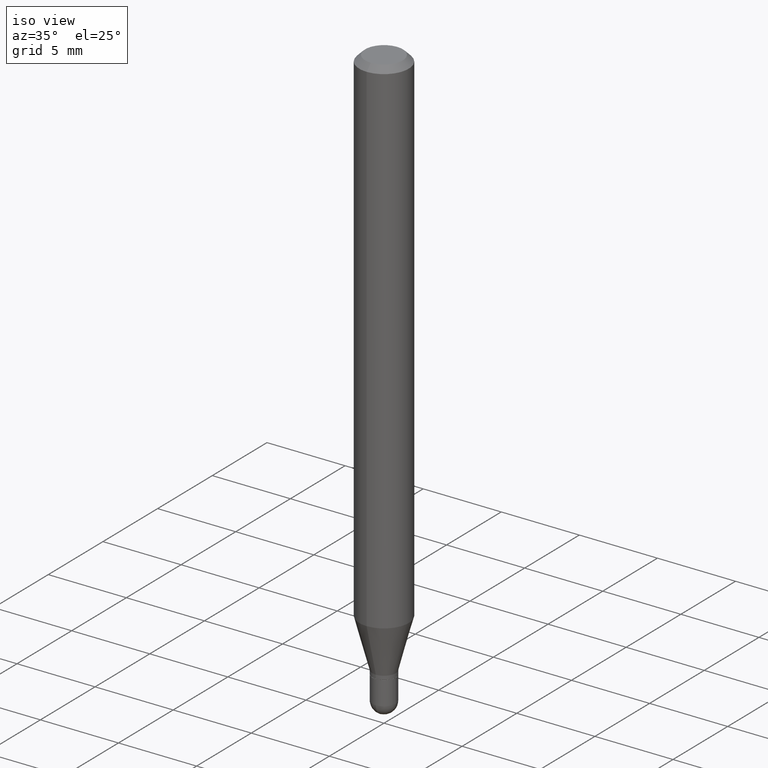
[diagram: clean part render]
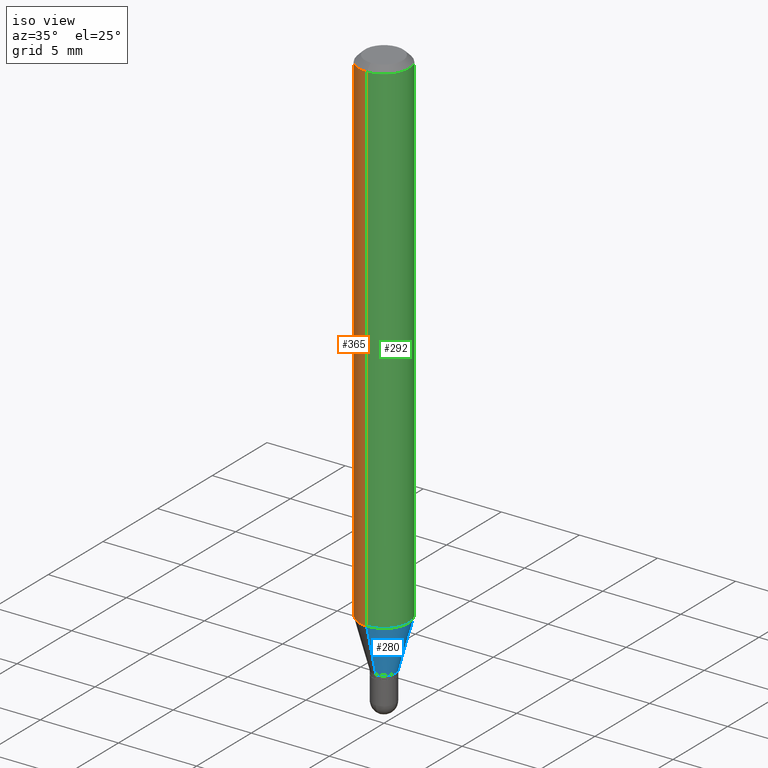
[diagram: same view with three faces highlighted in distinct colors, each labeled with its STEP entity id]
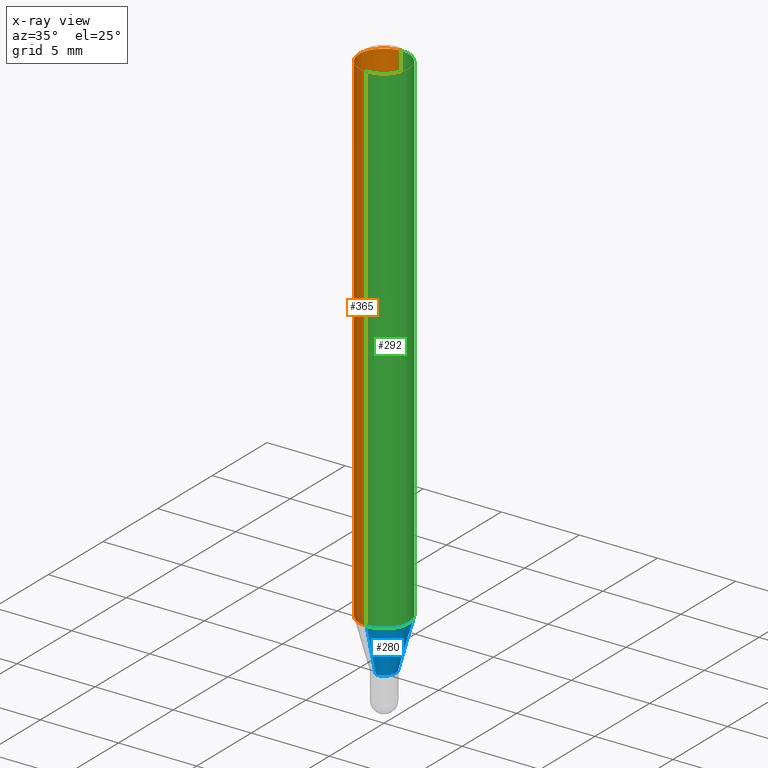
[diagram: x-ray of the same camera — body ghosted, the three highlighted faces saturated]
A machine part, iso view with three faces highlighted in distinct colors.
The next image is the same camera in x-ray (body ghosted, the three faces saturated) — at least one of them is partly hidden behind the body in this view.
Their STEP definitions:

[orange] entity #365 — the highlighted cylindrical surface (edge-blend (fillet) strip) has radius 1.5875 mm, axis along (-0, 0, 1).
#4 = CARTESIAN_POINT ( 'NONE',  ( 4.440892098500935790E-16, 0.06249999999999551054, -1.277842323350228959 ) ) ;
#11 = CARTESIAN_POINT ( 'NONE',  ( -4.364351673553916201E-16, -0.06250000000000000000, 2.182174235883125981E-16 ) ) ;
#15 = CARTESIAN_POINT ( 'NONE',  ( 3.124925826572324865E-29, -4.461559352857447454E-15, -1.277842323350228737 ) ) ;
#27 = FACE_OUTER_BOUND ( 'NONE', #305, .T. ) ;
#28 = EDGE_CURVE ( 'NONE', #345, #294, #340, .T. ) ;
#33 = DIRECTION ( 'NONE',  ( -2.445470594822246081E-29, 3.491478777413001570E-15, 1.000000000000000000 ) ) ;
#45 = LINE ( 'NONE', #208, #262 ) ;
#48 = DIRECTION ( 'NONE',  ( -2.445470594822246362E-29, 3.491478777413001965E-15, 1.000000000000000000 ) ) ;
#85 = DIRECTION ( 'NONE',  ( -6.982962677686265922E-15, -1.000000000000000000, 3.491478777413001570E-15 ) ) ;
#96 = LINE ( 'NONE', #11, #385 ) ;
#126 = CYLINDRICAL_SURFACE ( 'NONE', #432, 0.06250000000000000000 ) ;
#134 = ORIENTED_EDGE ( 'NONE', *, *, #335, .F. ) ;
#143 = DIRECTION ( 'NONE',  ( -6.982962677686265922E-15, -1.000000000000000000, 3.483106191921935554E-15 ) ) ;
#187 = DIRECTION ( 'NONE',  ( -2.445470594822246081E-29, 3.491478777413001570E-15, 1.000000000000000000 ) ) ;
#191 = DIRECTION ( 'NONE',  ( -6.982962677686265922E-15, -1.000000000000000000, 4.370956789862821150E-15 ) ) ;
#208 = CARTESIAN_POINT ( 'NONE',  ( 4.440892098500625669E-16, 0.06250000000000000000, -2.182174235883125981E-16 ) ) ;
#210 = CARTESIAN_POINT ( 'NONE',  ( -4.364351673553912750E-16, -0.06250000000000005551, -0.01499999999999979128 ) ) ;
#259 = CARTESIAN_POINT ( 'NONE',  ( 4.440892098500940720E-16, 0.06249999999999995143, -0.01500000000000022669 ) ) ;
#262 = VECTOR ( 'NONE', #48, 39.37007874015748143 ) ;
#275 = VERTEX_POINT ( 'NONE', #210 ) ;
#278 = EDGE_CURVE ( 'NONE', #485, #275, #281, .T. ) ;
#281 = CIRCLE ( 'NONE', #479, 0.06250000000000000000 ) ;
#293 = CARTESIAN_POINT ( 'NONE',  ( 3.668205892233371399E-31, -5.237218166119505609E-17, -0.01500000000000000812 ) ) ;
#294 = VERTEX_POINT ( 'NONE', #437 ) ;
#305 = EDGE_LOOP ( 'NONE', ( #134, #314, #332, #350 ) ) ;
#314 = ORIENTED_EDGE ( 'NONE', *, *, #28, .T. ) ;
#327 = DIRECTION ( 'NONE',  ( -2.445470594822246081E-29, 3.491478777413001570E-15, 1.000000000000000000 ) ) ;
#332 = ORIENTED_EDGE ( 'NONE', *, *, #482, .T. ) ;
#335 = EDGE_CURVE ( 'NONE', #345, #485, #45, .T. ) ;
#340 = CIRCLE ( 'NONE', #469, 0.06250000000000000000 ) ;
#345 = VERTEX_POINT ( 'NONE', #4 ) ;
#350 = ORIENTED_EDGE ( 'NONE', *, *, #278, .F. ) ;
#365 = ADVANCED_FACE ( 'NONE', ( #27 ), #126, .T. ) ;
#385 = VECTOR ( 'NONE', #404, 39.37007874015748143 ) ;
#404 = DIRECTION ( 'NONE',  ( -2.445470594822246362E-29, 3.491478777413001965E-15, 1.000000000000000000 ) ) ;
#432 = AXIS2_PLACEMENT_3D ( 'NONE', #505, #33, #85 ) ;
#437 = CARTESIAN_POINT ( 'NONE',  ( -4.364351673553605587E-16, -0.06250000000000449640, -1.277842323350228515 ) ) ;
#469 = AXIS2_PLACEMENT_3D ( 'NONE', #15, #187, #191 ) ;
#479 = AXIS2_PLACEMENT_3D ( 'NONE', #293, #327, #143 ) ;
#482 = EDGE_CURVE ( 'NONE', #294, #275, #96, .T. ) ;
#485 = VERTEX_POINT ( 'NONE', #259 ) ;
#505 = CARTESIAN_POINT ( 'NONE',  ( 0.000000000000000000, 0.000000000000000000, 0.000000000000000000 ) ) ;

[blue] entity #280 — the highlighted conical surface has half-angle 15 deg.
#4 = CARTESIAN_POINT ( 'NONE',  ( 4.440892098500935790E-16, 0.06249999999999551054, -1.277842323350228959 ) ) ;
#5 = EDGE_LOOP ( 'NONE', ( #18, #276, #55, #388 ) ) ;
#14 = CARTESIAN_POINT ( 'NONE',  ( -2.059973989917119804E-16, -0.02950000000000509159, -1.401000000000000245 ) ) ;
#18 = ORIENTED_EDGE ( 'NONE', *, *, #249, .T. ) ;
#36 = EDGE_CURVE ( 'NONE', #294, #345, #90, .T. ) ;
#49 = DIRECTION ( 'NONE',  ( -2.445470594822246081E-29, 3.491478777413001570E-15, 1.000000000000000000 ) ) ;
#55 = ORIENTED_EDGE ( 'NONE', *, *, #36, .F. ) ;
#58 = CARTESIAN_POINT ( 'NONE',  ( 3.426104303345967375E-29, -4.891561767155615897E-15, -1.401000000000000245 ) ) ;
#73 = CONICAL_SURFACE ( 'NONE', #411, 0.02950000000000019967, 0.2617993877991511287 ) ;
#86 = CARTESIAN_POINT ( 'NONE',  ( 3.124925826572324865E-29, -4.461559352857447454E-15, -1.277842323350228737 ) ) ;
#87 = VECTOR ( 'NONE', #179, 39.37007874015748143 ) ;
#90 = CIRCLE ( 'NONE', #489, 0.06250000000000000000 ) ;
#111 = DIRECTION ( 'NONE',  ( -2.445470594822246081E-29, 3.491478777413001570E-15, 1.000000000000000000 ) ) ;
#130 = DIRECTION ( 'NONE',  ( -2.445470594822246081E-29, 3.491478777413001570E-15, 1.000000000000000000 ) ) ;
#138 = EDGE_CURVE ( 'NONE', #475, #294, #368, .T. ) ;
#156 = EDGE_CURVE ( 'NONE', #400, #345, #219, .T. ) ;
#173 = DIRECTION ( 'NONE',  ( -6.982962677686265922E-15, -1.000000000000000000, 0.000000000000000000 ) ) ;
#179 = DIRECTION ( 'NONE',  ( -1.807323732225336056E-15, -0.2588190451025190186, 0.9659258262890687563 ) ) ;
#182 = CARTESIAN_POINT ( 'NONE',  ( 2.096101070492652151E-16, 0.02949999999999530775, -1.401000000000000245 ) ) ;
#193 = DIRECTION ( 'NONE',  ( -6.982962677686265922E-15, -1.000000000000000000, 4.370956789862821150E-15 ) ) ;
#211 = DIRECTION ( 'NONE',  ( -6.982962677686265922E-15, -1.000000000000000000, 0.000000000000000000 ) ) ;
#219 = LINE ( 'NONE', #182, #398 ) ;
#249 = EDGE_CURVE ( 'NONE', #475, #400, #502, .T. ) ;
#267 = DIRECTION ( 'NONE',  ( 1.839019923739606232E-15, 0.2588190451025257910, 0.9659258262890669799 ) ) ;
#276 = ORIENTED_EDGE ( 'NONE', *, *, #156, .T. ) ;
#280 = ADVANCED_FACE ( 'NONE', ( #289 ), #73, .T. ) ;
#289 = FACE_OUTER_BOUND ( 'NONE', #5, .T. ) ;
#294 = VERTEX_POINT ( 'NONE', #437 ) ;
#331 = CARTESIAN_POINT ( 'NONE',  ( 3.268496584496795573E-16, 0.02949999999999530775, -1.401000000000000245 ) ) ;
#345 = VERTEX_POINT ( 'NONE', #4 ) ;
#368 = LINE ( 'NONE', #14, #87 ) ;
#377 = AXIS2_PLACEMENT_3D ( 'NONE', #58, #49, #173 ) ;
#388 = ORIENTED_EDGE ( 'NONE', *, *, #138, .F. ) ;
#398 = VECTOR ( 'NONE', #267, 39.37007874015748143 ) ;
#400 = VERTEX_POINT ( 'NONE', #331 ) ;
#411 = AXIS2_PLACEMENT_3D ( 'NONE', #444, #130, #211 ) ;
#437 = CARTESIAN_POINT ( 'NONE',  ( -4.364351673553605587E-16, -0.06250000000000449640, -1.277842323350228515 ) ) ;
#444 = CARTESIAN_POINT ( 'NONE',  ( 3.426104303345967375E-29, -4.891561767155615897E-15, -1.401000000000000245 ) ) ;
#457 = CARTESIAN_POINT ( 'NONE',  ( -2.059973989917119804E-16, -0.02950000000000509159, -1.401000000000000245 ) ) ;
#475 = VERTEX_POINT ( 'NONE', #457 ) ;
#489 = AXIS2_PLACEMENT_3D ( 'NONE', #86, #111, #193 ) ;
#502 = CIRCLE ( 'NONE', #377, 0.02950000000000019967 ) ;

[green] entity #292 — the highlighted cylindrical surface (edge-blend (fillet) strip) has radius 1.5875 mm, axis along (-0, 0, 1).
#4 = CARTESIAN_POINT ( 'NONE',  ( 4.440892098500935790E-16, 0.06249999999999551054, -1.277842323350228959 ) ) ;
#11 = CARTESIAN_POINT ( 'NONE',  ( -4.364351673553916201E-16, -0.06250000000000000000, 2.182174235883125981E-16 ) ) ;
#35 = CARTESIAN_POINT ( 'NONE',  ( 3.668205892233371399E-31, -5.237218166119505609E-17, -0.01500000000000000812 ) ) ;
#36 = EDGE_CURVE ( 'NONE', #294, #345, #90, .T. ) ;
#45 = LINE ( 'NONE', #208, #262 ) ;
#48 = DIRECTION ( 'NONE',  ( -2.445470594822246362E-29, 3.491478777413001965E-15, 1.000000000000000000 ) ) ;
#56 = DIRECTION ( 'NONE',  ( -6.982962677686265922E-15, -1.000000000000000000, 3.491478777413001570E-15 ) ) ;
#86 = CARTESIAN_POINT ( 'NONE',  ( 3.124925826572324865E-29, -4.461559352857447454E-15, -1.277842323350228737 ) ) ;
#90 = CIRCLE ( 'NONE', #489, 0.06250000000000000000 ) ;
#96 = LINE ( 'NONE', #11, #385 ) ;
#111 = DIRECTION ( 'NONE',  ( -2.445470594822246081E-29, 3.491478777413001570E-15, 1.000000000000000000 ) ) ;
#133 = CARTESIAN_POINT ( 'NONE',  ( 0.000000000000000000, 0.000000000000000000, 0.000000000000000000 ) ) ;
#168 = FACE_OUTER_BOUND ( 'NONE', #389, .T. ) ;
#172 = DIRECTION ( 'NONE',  ( -2.445470594822246081E-29, 3.491478777413001570E-15, 1.000000000000000000 ) ) ;
#193 = DIRECTION ( 'NONE',  ( -6.982962677686265922E-15, -1.000000000000000000, 4.370956789862821150E-15 ) ) ;
#208 = CARTESIAN_POINT ( 'NONE',  ( 4.440892098500625669E-16, 0.06250000000000000000, -2.182174235883125981E-16 ) ) ;
#210 = CARTESIAN_POINT ( 'NONE',  ( -4.364351673553912750E-16, -0.06250000000000005551, -0.01499999999999979128 ) ) ;
#235 = AXIS2_PLACEMENT_3D ( 'NONE', #35, #172, #428 ) ;
#243 = DIRECTION ( 'NONE',  ( -2.445470594822246081E-29, 3.491478777413001570E-15, 1.000000000000000000 ) ) ;
#259 = CARTESIAN_POINT ( 'NONE',  ( 4.440892098500940720E-16, 0.06249999999999995143, -0.01500000000000022669 ) ) ;
#262 = VECTOR ( 'NONE', #48, 39.37007874015748143 ) ;
#275 = VERTEX_POINT ( 'NONE', #210 ) ;
#292 = ADVANCED_FACE ( 'NONE', ( #168 ), #474, .T. ) ;
#294 = VERTEX_POINT ( 'NONE', #437 ) ;
#309 = ORIENTED_EDGE ( 'NONE', *, *, #335, .T. ) ;
#326 = ORIENTED_EDGE ( 'NONE', *, *, #36, .T. ) ;
#335 = EDGE_CURVE ( 'NONE', #345, #485, #45, .T. ) ;
#345 = VERTEX_POINT ( 'NONE', #4 ) ;
#385 = VECTOR ( 'NONE', #404, 39.37007874015748143 ) ;
#389 = EDGE_LOOP ( 'NONE', ( #326, #309, #424, #438 ) ) ;
#404 = DIRECTION ( 'NONE',  ( -2.445470594822246362E-29, 3.491478777413001965E-15, 1.000000000000000000 ) ) ;
#424 = ORIENTED_EDGE ( 'NONE', *, *, #507, .F. ) ;
#428 = DIRECTION ( 'NONE',  ( -6.982962677686265922E-15, -1.000000000000000000, 3.483106191921935554E-15 ) ) ;
#437 = CARTESIAN_POINT ( 'NONE',  ( -4.364351673553605587E-16, -0.06250000000000449640, -1.277842323350228515 ) ) ;
#438 = ORIENTED_EDGE ( 'NONE', *, *, #482, .F. ) ;
#451 = CIRCLE ( 'NONE', #235, 0.06250000000000000000 ) ;
#474 = CYLINDRICAL_SURFACE ( 'NONE', #484, 0.06250000000000000000 ) ;
#482 = EDGE_CURVE ( 'NONE', #294, #275, #96, .T. ) ;
#484 = AXIS2_PLACEMENT_3D ( 'NONE', #133, #243, #56 ) ;
#485 = VERTEX_POINT ( 'NONE', #259 ) ;
#489 = AXIS2_PLACEMENT_3D ( 'NONE', #86, #111, #193 ) ;
#507 = EDGE_CURVE ( 'NONE', #275, #485, #451, .T. ) ;